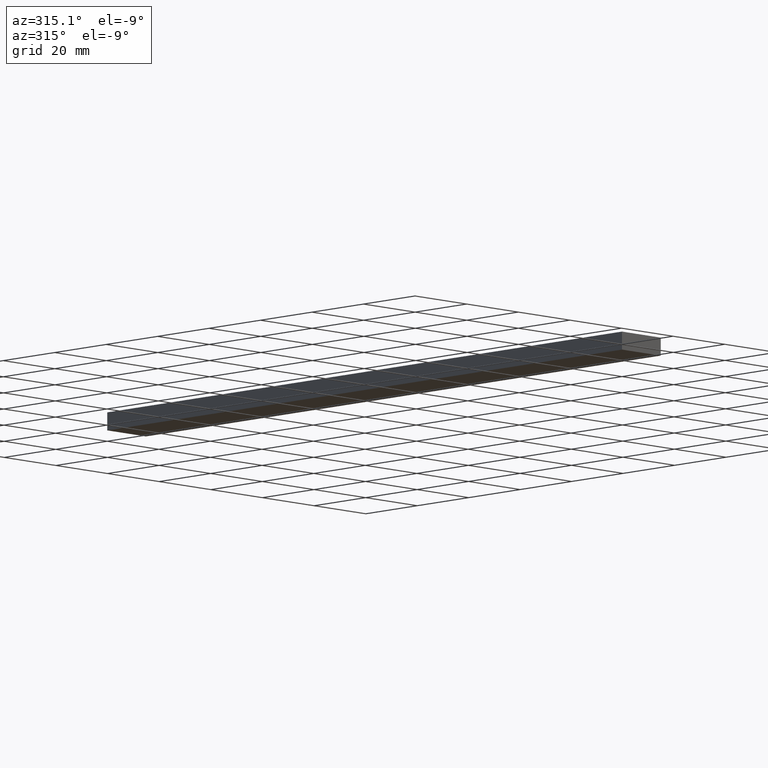
[diagram: clean part render]
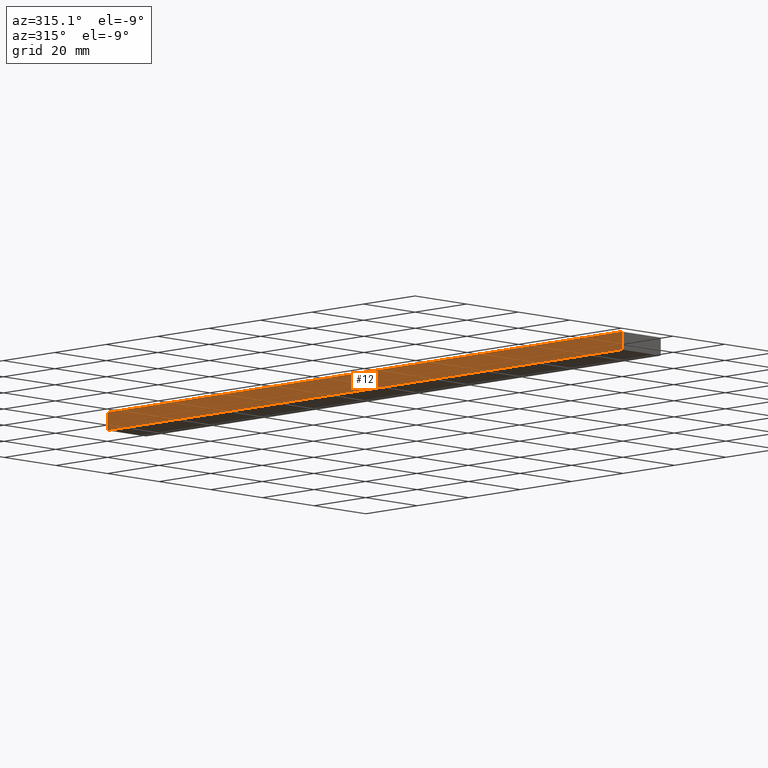
[diagram: same view with one face highlighted and labeled with its STEP entity id]
A machine part, auxiliary view. The second image highlights one B-rep face of the part: STEP entity #12.
In plain terms, the highlighted planar face has unit normal (-1, 0, 0).
Its self-contained STEP definition (entity closure, byte-faithful):
#12 = ADVANCED_FACE ( 'NONE', ( #237 ), #47, .T. ) ;
#34 = DIRECTION ( 'NONE',  ( 0.0000000000000000000, -1.000000000000000000, 0.0000000000000000000 ) ) ;
#39 = EDGE_CURVE ( 'NONE', #204, #154, #109, .T. ) ;
#47 = PLANE ( 'NONE',  #131 ) ;
#48 = ORIENTED_EDGE ( 'NONE', *, *, #216, .T. ) ;
#50 = ORIENTED_EDGE ( 'NONE', *, *, #62, .T. ) ;
#54 = CARTESIAN_POINT ( 'NONE',  ( 0.0000000000000000000, 200.0000000000000000, 0.0000000000000000000 ) ) ;
#62 = EDGE_CURVE ( 'NONE', #207, #209, #219, .T. ) ;
#65 = CARTESIAN_POINT ( 'NONE',  ( 0.0000000000000000000, 1000.000000000000000, 0.0000000000000000000 ) ) ;
#66 = DIRECTION ( 'NONE',  ( 0.0000000000000000000, -1.000000000000000000, 0.0000000000000000000 ) ) ;
#71 = VECTOR ( 'NONE', #217, 1000.000000000000000 ) ;
#94 = ORIENTED_EDGE ( 'NONE', *, *, #159, .F. ) ;
#97 = LINE ( 'NONE', #168, #137 ) ;
#109 = LINE ( 'NONE', #171, #71 ) ;
#121 = VECTOR ( 'NONE', #34, 1000.000000000000000 ) ;
#130 = DIRECTION ( 'NONE',  ( -0.0000000000000000000, -0.0000000000000000000, -1.000000000000000000 ) ) ;
#131 = AXIS2_PLACEMENT_3D ( 'NONE', #160, #201, #213 ) ;
#134 = VECTOR ( 'NONE', #130, 1000.000000000000000 ) ;
#137 = VECTOR ( 'NONE', #66, 1000.000000000000000 ) ;
#145 = EDGE_LOOP ( 'NONE', ( #231, #94, #50, #48 ) ) ;
#146 = CARTESIAN_POINT ( 'NONE',  ( 0.0000000000000000000, 200.0000000000000000, 5.000000000000000000 ) ) ;
#154 = VERTEX_POINT ( 'NONE', #185 ) ;
#159 = EDGE_CURVE ( 'NONE', #207, #204, #97, .T. ) ;
#160 = CARTESIAN_POINT ( 'NONE',  ( 0.0000000000000000000, 1000.000000000000000, 5.000000000000000000 ) ) ;
#161 = LINE ( 'NONE', #65, #121 ) ;
#168 = CARTESIAN_POINT ( 'NONE',  ( 0.0000000000000000000, 1000.000000000000000, 5.000000000000000000 ) ) ;
#171 = CARTESIAN_POINT ( 'NONE',  ( 0.0000000000000000000, 0.0000000000000000000, 0.0000000000000000000 ) ) ;
#183 = CARTESIAN_POINT ( 'NONE',  ( 0.0000000000000000000, 200.0000000000000000, 0.0000000000000000000 ) ) ;
#185 = CARTESIAN_POINT ( 'NONE',  ( 0.0000000000000000000, 0.0000000000000000000, 0.0000000000000000000 ) ) ;
#201 = DIRECTION ( 'NONE',  ( -1.000000000000000000, 0.0000000000000000000, 0.0000000000000000000 ) ) ;
#204 = VERTEX_POINT ( 'NONE', #214 ) ;
#207 = VERTEX_POINT ( 'NONE', #146 ) ;
#209 = VERTEX_POINT ( 'NONE', #183 ) ;
#213 = DIRECTION ( 'NONE',  ( 0.0000000000000000000, 0.0000000000000000000, 1.000000000000000000 ) ) ;
#214 = CARTESIAN_POINT ( 'NONE',  ( 0.0000000000000000000, 0.0000000000000000000, 5.000000000000000000 ) ) ;
#216 = EDGE_CURVE ( 'NONE', #209, #154, #161, .T. ) ;
#217 = DIRECTION ( 'NONE',  ( -0.0000000000000000000, -0.0000000000000000000, -1.000000000000000000 ) ) ;
#219 = LINE ( 'NONE', #54, #134 ) ;
#231 = ORIENTED_EDGE ( 'NONE', *, *, #39, .F. ) ;
#237 = FACE_OUTER_BOUND ( 'NONE', #145, .T. ) ;